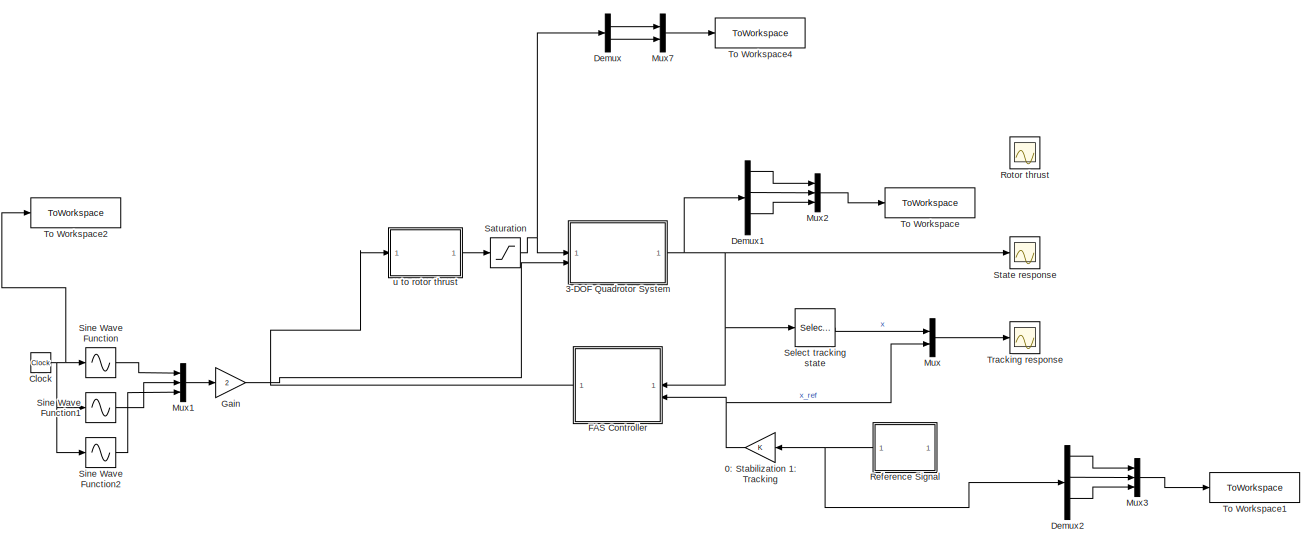
[diagram: root canvas - part 1/2, full width, top band]
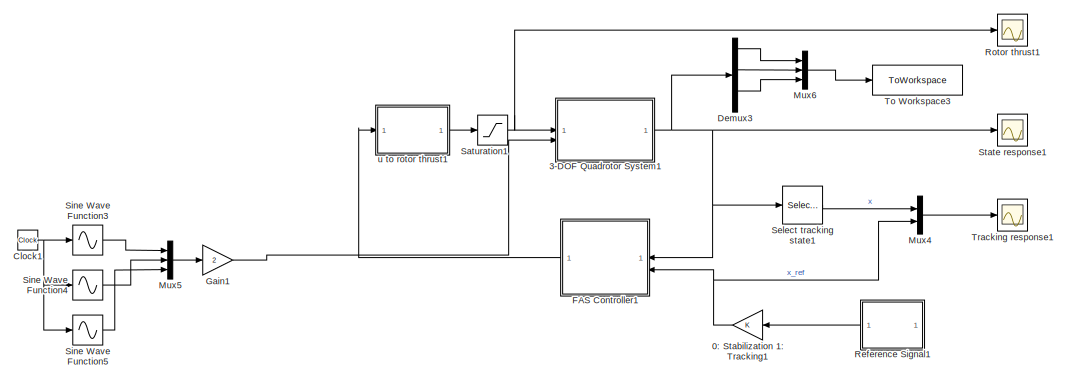
[diagram: root canvas - part 2/2, full width, bottom band]
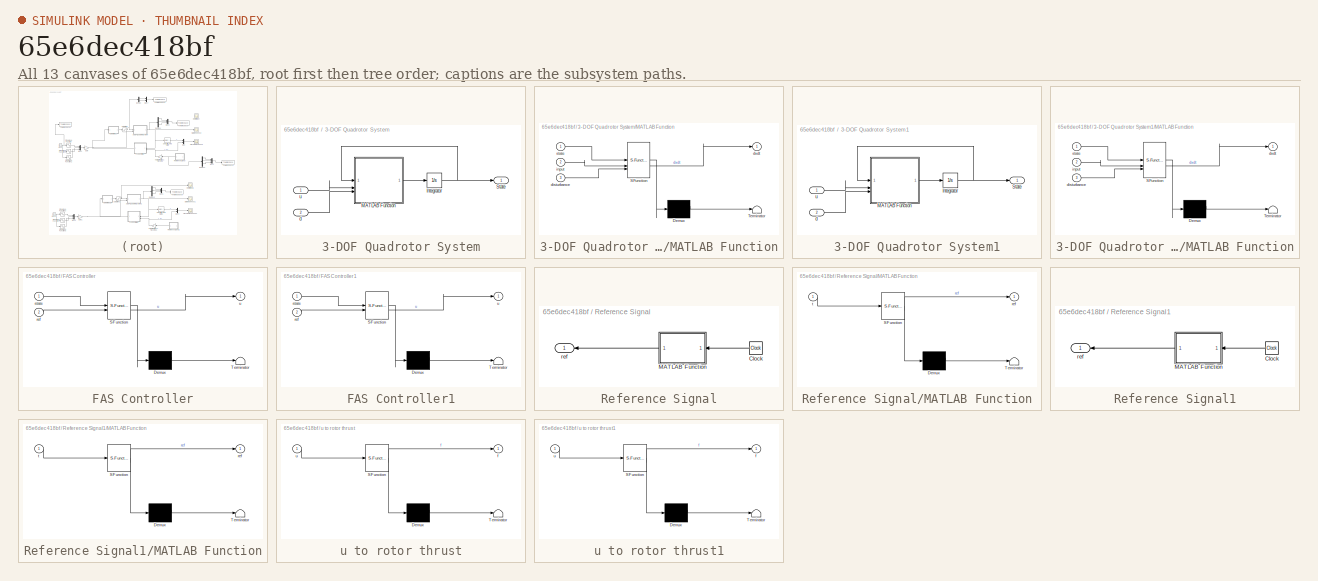
[diagram: thumbnail index - all 13 canvases of the model, root first then tree order]
MODEL slx_65e6dec418bf
KIND model
CONFIG AbsTol = auto
CONFIG EnableMultiTasking = off
CONFIG FixedStep = 0.0025
CONFIG MaxStep = auto
CONFIG MinStep = auto
CONFIG RelTol = 1e-3
CONFIG SampleTimeConstraint = Unconstrained
CONFIG SolverName = VariableStepAuto
CONFIG StartTime = 0.0
CONFIG StopTime = 20
BLOCK [Gain] 0: Stabilization 1: Tracking
BLOCK [Gain] 0: Stabilization 1: Tracking1
BLOCK [SubSystem] 3-DOF Quadrotor System
BLOCK [Integrator] 3-DOF Quadrotor System/Integrator
  InitialCondition = zeros(6,1)
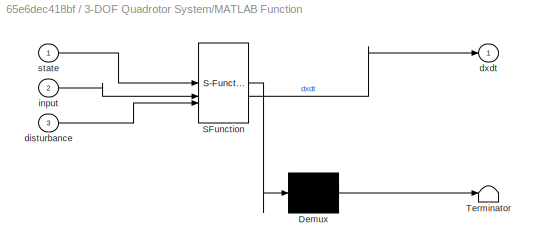
BLOCK [SubSystem] 3-DOF Quadrotor System/MATLAB Function
  ErrorFcn = Stateflow.Translate.translate
  LibrarySourceBlock = simulink/User-Defined\nFunctions/MATLAB Function
  PermitHierarchicalResolution = ExplicitOnly
  SFBlockType = MATLAB Function
  TreatAsAtomicUnit = on
BLOCK [Demux] 3-DOF Quadrotor System/MATLAB Function/ Demux 
  Outputs = 1
BLOCK [S-Function] 3-DOF Quadrotor System/MATLAB Function/ SFunction 
  EnableBusSupport = on
  FunctionName = sf_sfun
  PortCounts = [3 2]
  SFcnIsStateOwnerBlock = off
  SFunctionDeploymentMode = off
  Tag = Stateflow S-Function 2
BLOCK [Terminator] 3-DOF Quadrotor System/MATLAB Function/ Terminator 
BLOCK [Inport] 3-DOF Quadrotor System/MATLAB Function/disturbance
  Port = 3
BLOCK [Outport] 3-DOF Quadrotor System/MATLAB Function/dxdt
BLOCK [Inport] 3-DOF Quadrotor System/MATLAB Function/input
  Port = 2
BLOCK [Inport] 3-DOF Quadrotor System/MATLAB Function/state
BLOCK [Outport] 3-DOF Quadrotor System/State
BLOCK [Inport] 3-DOF Quadrotor System/d
  Port = 2
BLOCK [Inport] 3-DOF Quadrotor System/u
BLOCK [SubSystem] 3-DOF Quadrotor System1
BLOCK [Integrator] 3-DOF Quadrotor System1/Integrator
  InitialCondition = zeros(6,1)
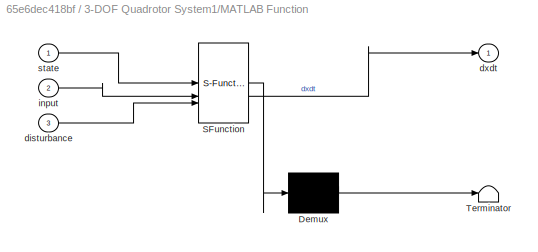
BLOCK [SubSystem] 3-DOF Quadrotor System1/MATLAB Function
  ErrorFcn = Stateflow.Translate.translate
  LibrarySourceBlock = simulink/User-Defined\nFunctions/MATLAB Function
  PermitHierarchicalResolution = ExplicitOnly
  SFBlockType = MATLAB Function
  TreatAsAtomicUnit = on
BLOCK [Demux] 3-DOF Quadrotor System1/MATLAB Function/ Demux 
  Outputs = 1
BLOCK [S-Function] 3-DOF Quadrotor System1/MATLAB Function/ SFunction 
  EnableBusSupport = on
  FunctionName = sf_sfun
  PortCounts = [3 2]
  SFcnIsStateOwnerBlock = off
  SFunctionDeploymentMode = off
  Tag = Stateflow S-Function 1
BLOCK [Terminator] 3-DOF Quadrotor System1/MATLAB Function/ Terminator 
BLOCK [Inport] 3-DOF Quadrotor System1/MATLAB Function/disturbance
  Port = 3
BLOCK [Outport] 3-DOF Quadrotor System1/MATLAB Function/dxdt
BLOCK [Inport] 3-DOF Quadrotor System1/MATLAB Function/input
  Port = 2
BLOCK [Inport] 3-DOF Quadrotor System1/MATLAB Function/state
BLOCK [Outport] 3-DOF Quadrotor System1/State
BLOCK [Inport] 3-DOF Quadrotor System1/d
  Port = 2
BLOCK [Inport] 3-DOF Quadrotor System1/u
BLOCK [Clock] Clock
BLOCK [Clock] Clock1
BLOCK [Demux] Demux
  Outputs = 2
BLOCK [Demux] Demux1
  Outputs = 6
BLOCK [Demux] Demux2
  Outputs = 6
BLOCK [Demux] Demux3
  Outputs = 6
BLOCK [SubSystem] FAS Controller
  ErrorFcn = Stateflow.Translate.translate
  LibrarySourceBlock = simulink/User-Defined\nFunctions/MATLAB Function
  PermitHierarchicalResolution = ExplicitOnly
  SFBlockType = MATLAB Function
  TreatAsAtomicUnit = on
BLOCK [Demux] FAS Controller/ Demux 
  Outputs = 1
BLOCK [S-Function] FAS Controller/ SFunction 
  EnableBusSupport = on
  FunctionName = sf_sfun
  PortCounts = [2 2]
  SFcnIsStateOwnerBlock = off
  SFunctionDeploymentMode = off
  Tag = Stateflow S-Function 4
BLOCK [Terminator] FAS Controller/ Terminator 
BLOCK [Inport] FAS Controller/ref
  Port = 2
BLOCK [Inport] FAS Controller/state
BLOCK [Outport] FAS Controller/u
BLOCK [SubSystem] FAS Controller1
  ErrorFcn = Stateflow.Translate.translate
  LibrarySourceBlock = simulink/User-Defined\nFunctions/MATLAB Function
  PermitHierarchicalResolution = ExplicitOnly
  SFBlockType = MATLAB Function
  TreatAsAtomicUnit = on
BLOCK [Demux] FAS Controller1/ Demux 
  Outputs = 1
BLOCK [S-Function] FAS Controller1/ SFunction 
  EnableBusSupport = on
  FunctionName = sf_sfun
  PortCounts = [2 2]
  SFcnIsStateOwnerBlock = off
  SFunctionDeploymentMode = off
  Tag = Stateflow S-Function 5
BLOCK [Terminator] FAS Controller1/ Terminator 
BLOCK [Inport] FAS Controller1/ref
  Port = 2
BLOCK [Inport] FAS Controller1/state
BLOCK [Outport] FAS Controller1/u
BLOCK [Gain] Gain
  Gain = 2
BLOCK [Gain] Gain1
  Gain = 2
BLOCK [Mux] Mux
  DisplayOption = bar
  Inputs = 2
BLOCK [Mux] Mux1
  DisplayOption = bar
  Inputs = 3
BLOCK [Mux] Mux2
  DisplayOption = bar
  Inputs = 3
BLOCK [Mux] Mux3
  DisplayOption = bar
  Inputs = 3
BLOCK [Mux] Mux4
  DisplayOption = bar
  Inputs = 2
BLOCK [Mux] Mux5
  DisplayOption = bar
  Inputs = 3
BLOCK [Mux] Mux6
  DisplayOption = bar
  Inputs = 3
BLOCK [Mux] Mux7
  DisplayOption = bar
  Inputs = 2
BLOCK [SubSystem] Reference Signal
BLOCK [Clock] Reference Signal/Clock
  NameLocation = top
BLOCK [SubSystem] Reference Signal/MATLAB Function
  ErrorFcn = Stateflow.Translate.translate
  LibrarySourceBlock = simulink/User-Defined\nFunctions/MATLAB Function
  NameLocation = top
  PermitHierarchicalResolution = ExplicitOnly
  SFBlockType = MATLAB Function
  TreatAsAtomicUnit = on
BLOCK [Demux] Reference Signal/MATLAB Function/ Demux 
  Outputs = 1
BLOCK [S-Function] Reference Signal/MATLAB Function/ SFunction 
  EnableBusSupport = on
  FunctionName = sf_sfun
  PortCounts = [1 2]
  SFcnIsStateOwnerBlock = off
  SFunctionDeploymentMode = off
  Tag = Stateflow S-Function 3
BLOCK [Terminator] Reference Signal/MATLAB Function/ Terminator 
BLOCK [Outport] Reference Signal/MATLAB Function/ref
BLOCK [Inport] Reference Signal/MATLAB Function/t
BLOCK [Outport] Reference Signal/ref
BLOCK [SubSystem] Reference Signal1
BLOCK [Clock] Reference Signal1/Clock
  NameLocation = top
BLOCK [SubSystem] Reference Signal1/MATLAB Function
  ErrorFcn = Stateflow.Translate.translate
  LibrarySourceBlock = simulink/User-Defined\nFunctions/MATLAB Function
  NameLocation = top
  PermitHierarchicalResolution = ExplicitOnly
  SFBlockType = MATLAB Function
  TreatAsAtomicUnit = on
BLOCK [Demux] Reference Signal1/MATLAB Function/ Demux 
  Outputs = 1
BLOCK [S-Function] Reference Signal1/MATLAB Function/ SFunction 
  EnableBusSupport = on
  FunctionName = sf_sfun
  PortCounts = [1 2]
  SFcnIsStateOwnerBlock = off
  SFunctionDeploymentMode = off
  Tag = Stateflow S-Function 7
BLOCK [Terminator] Reference Signal1/MATLAB Function/ Terminator 
BLOCK [Outport] Reference Signal1/MATLAB Function/ref
BLOCK [Inport] Reference Signal1/MATLAB Function/t
BLOCK [Outport] Reference Signal1/ref
BLOCK [Scope] Rotor thrust
  Floating = off
  NumInputPorts = 1
  ScopeSpecificationString = Simulink.scopes.TimeScopeBlockCfg('CurrentConfiguration', extmgr.ConfigurationSet(extmgr.Configuration('Core','General UI',true),extmgr.Configuration('Core','Source UI',true),extmgr.Configuration('Sources','WiredSimulink',true,'DataLoggingVariableName','ScopeData2'),extmgr.Configuration('Visuals','Time Domain',true,'SerializedDisplays',{struct('MinYLimReal','3.18422','MaxYLimReal','12.50544','YLab...<+1553ch>
BLOCK [Scope] Rotor thrust1
  Floating = off
  NumInputPorts = 1
  ScopeSpecificationString = Simulink.scopes.TimeScopeBlockCfg('CurrentConfiguration', extmgr.ConfigurationSet(extmgr.Configuration('Core','General UI',true),extmgr.Configuration('Core','Source UI',true),extmgr.Configuration('Sources','WiredSimulink',true,'DataLoggingVariableName','ScopeData1'),extmgr.Configuration('Visuals','Time Domain',true,'SerializedDisplays',{struct('MinYLimReal','3.1861','MaxYLimReal','12.50523','YLabe...<+1549ch>
BLOCK [Saturate] Saturation
  LowerLimit = -50
  UpperLimit = 50
BLOCK [Saturate] Saturation1
  LowerLimit = -50
  UpperLimit = 50
BLOCK [Selector] Select tracking state
  IndexOptions = Index vector (dialog)
  Indices = [1]
  InputPortWidth = 6
  OutputSizes = 1
BLOCK [Selector] Select tracking state1
  IndexOptions = Index vector (dialog)
  Indices = [1]
  InputPortWidth = 6
  OutputSizes = 1
BLOCK [Sin] Sine Wave Function
  Amplitude = 0.01
  SampleTime = 0
  TimeSource = Use external signal
BLOCK [Sin] Sine Wave Function1
  Amplitude = 0.01
  SampleTime = 0
  TimeSource = Use external signal
BLOCK [Sin] Sine Wave Function2
  Amplitude = 0.01
  SampleTime = 0
  TimeSource = Use external signal
BLOCK [Sin] Sine Wave Function3
  Amplitude = 0.01
  SampleTime = 0
  TimeSource = Use external signal
BLOCK [Sin] Sine Wave Function4
  Amplitude = 0.01
  SampleTime = 0
  TimeSource = Use external signal
BLOCK [Sin] Sine Wave Function5
  Amplitude = 0.01
  SampleTime = 0
  TimeSource = Use external signal
BLOCK [Scope] State response
  Floating = off
  NumInputPorts = 1
  ScopeSpecificationString = Simulink.scopes.TimeScopeBlockCfg('CurrentConfiguration', extmgr.ConfigurationSet(extmgr.Configuration('Core','General UI',true),extmgr.Configuration('Core','Source UI',true),extmgr.Configuration('Sources','WiredSimulink',true),extmgr.Configuration('Visuals','Time Domain',true,'SerializedDisplays',{struct('MinYLimReal','-0.94013','MaxYLimReal','1.21763','YLabelReal','','MinYLimMag','0.00000','MaxY...<+1872ch>
BLOCK [Scope] State response1
  Floating = off
  NumInputPorts = 1
  ScopeSpecificationString = Simulink.scopes.TimeScopeBlockCfg('CurrentConfiguration', extmgr.ConfigurationSet(extmgr.Configuration('Core','General UI',true),extmgr.Configuration('Core','Source UI',true),extmgr.Configuration('Sources','WiredSimulink',true,'DataLoggingVariableName','ScopeData2'),extmgr.Configuration('Visuals','Time Domain',true,'SerializedDisplays',{struct('MinYLimReal','-0.94013','MaxYLimReal','1.21763','YLab...<+1911ch>
BLOCK [ToWorkspace] To Workspace
  FixptAsFi = on
  MaxDataPoints = inf
  SampleTime = -1
  VariableName = state
BLOCK [ToWorkspace] To Workspace1
  FixptAsFi = on
  MaxDataPoints = inf
  SampleTime = -1
  VariableName = ref
BLOCK [ToWorkspace] To Workspace2
  FixptAsFi = on
  MaxDataPoints = inf
  SampleTime = -1
  VariableName = t
BLOCK [ToWorkspace] To Workspace3
  FixptAsFi = on
  MaxDataPoints = inf
  SampleTime = -1
  VariableName = state1
BLOCK [ToWorkspace] To Workspace4
  FixptAsFi = on
  MaxDataPoints = inf
  SampleTime = -1
  VariableName = u
BLOCK [Scope] Tracking response
  Floating = off
  NumInputPorts = 1
  ScopeSpecificationString = Simulink.scopes.TimeScopeBlockCfg('CurrentConfiguration', extmgr.ConfigurationSet(extmgr.Configuration('Core','General UI',true),extmgr.Configuration('Core','Source UI',true),extmgr.Configuration('Sources','WiredSimulink',true,'DataLoggingVariableName','ScopeData3'),extmgr.Configuration('Visuals','Time Domain',true,'SerializedDisplays',{struct('MinYLimReal','-1.25681','MaxYLimReal','1.31126','YLab...<+1659ch>
BLOCK [Scope] Tracking response1
  Floating = off
  NumInputPorts = 1
  ScopeSpecificationString = Simulink.scopes.TimeScopeBlockCfg('CurrentConfiguration', extmgr.ConfigurationSet(extmgr.Configuration('Core','General UI',true),extmgr.Configuration('Core','Source UI',true),extmgr.Configuration('Sources','WiredSimulink',true,'DataLoggingVariableName','ScopeData3'),extmgr.Configuration('Visuals','Time Domain',true,'SerializedDisplays',{struct('MinYLimReal','-1.25681','MaxYLimReal','1.31126','YLab...<+1659ch>
BLOCK [SubSystem] u to rotor thrust
  ErrorFcn = Stateflow.Translate.translate
  LibrarySourceBlock = simulink/User-Defined\nFunctions/MATLAB Function
  PermitHierarchicalResolution = ExplicitOnly
  SFBlockType = MATLAB Function
  TreatAsAtomicUnit = on
BLOCK [Demux] u to rotor thrust/ Demux 
  Outputs = 1
BLOCK [S-Function] u to rotor thrust/ SFunction 
  EnableBusSupport = on
  FunctionName = sf_sfun
  PortCounts = [1 2]
  SFcnIsStateOwnerBlock = off
  SFunctionDeploymentMode = off
  Tag = Stateflow S-Function 6
BLOCK [Terminator] u to rotor thrust/ Terminator 
BLOCK [Outport] u to rotor thrust/f
BLOCK [Inport] u to rotor thrust/u
BLOCK [SubSystem] u to rotor thrust1
  ErrorFcn = Stateflow.Translate.translate
  LibrarySourceBlock = simulink/User-Defined\nFunctions/MATLAB Function
  PermitHierarchicalResolution = ExplicitOnly
  SFBlockType = MATLAB Function
  TreatAsAtomicUnit = on
BLOCK [Demux] u to rotor thrust1/ Demux 
  Outputs = 1
BLOCK [S-Function] u to rotor thrust1/ SFunction 
  EnableBusSupport = on
  FunctionName = sf_sfun
  PortCounts = [1 2]
  SFcnIsStateOwnerBlock = off
  SFunctionDeploymentMode = off
  Tag = Stateflow S-Function 8
BLOCK [Terminator] u to rotor thrust1/ Terminator 
BLOCK [Outport] u to rotor thrust1/f
BLOCK [Inport] u to rotor thrust1/u
NET 0: Stabilization 1: Tracking1:1 -> FAS Controller1:2, Mux4:2
NET 0: Stabilization 1: Tracking:1 -> FAS Controller:2, Mux:2
NET 3-DOF Quadrotor System/Integrator:1 -> 3-DOF Quadrotor System/MATLAB Function:1, 3-DOF Quadrotor System/State:1
LINE 3-DOF Quadrotor System/MATLAB Function:1 -> 3-DOF Quadrotor System/Integrator:1
LINE 3-DOF Quadrotor System/d:1 -> 3-DOF Quadrotor System/MATLAB Function:3
LINE 3-DOF Quadrotor System/u:1 -> 3-DOF Quadrotor System/MATLAB Function:2
NET 3-DOF Quadrotor System1/Integrator:1 -> 3-DOF Quadrotor System1/MATLAB Function:1, 3-DOF Quadrotor System1/State:1
LINE 3-DOF Quadrotor System1/MATLAB Function:1 -> 3-DOF Quadrotor System1/Integrator:1
LINE 3-DOF Quadrotor System1/d:1 -> 3-DOF Quadrotor System1/MATLAB Function:3
LINE 3-DOF Quadrotor System1/u:1 -> 3-DOF Quadrotor System1/MATLAB Function:2
NET 3-DOF Quadrotor System1:1 -> Demux3:1, FAS Controller1:1, Select tracking state1:1, State response1:1
NET 3-DOF Quadrotor System:1 -> Demux1:1, FAS Controller:1, Select tracking state:1, State response:1
NET Clock1:1 -> Sine Wave Function3:1, Sine Wave Function4:1, Sine Wave Function5:1
NET Clock:1 -> Sine Wave Function1:1, Sine Wave Function2:1, Sine Wave Function:1, To Workspace2:1
LINE Demux1:1 -> Mux2:1
LINE Demux1:3 -> Mux2:2
LINE Demux1:5 -> Mux2:3
LINE Demux2:1 -> Mux3:1
LINE Demux2:3 -> Mux3:2
LINE Demux2:5 -> Mux3:3
LINE Demux3:1 -> Mux6:1
LINE Demux3:3 -> Mux6:2
LINE Demux3:5 -> Mux6:3
LINE Demux:1 -> Mux7:1
LINE Demux:2 -> Mux7:2
LINE FAS Controller1:1 -> u to rotor thrust1:1
LINE FAS Controller:1 -> u to rotor thrust:1
LINE Gain1:1 -> 3-DOF Quadrotor System1:2
LINE Gain:1 -> 3-DOF Quadrotor System:2
LINE Mux1:1 -> Gain:1
LINE Mux2:1 -> To Workspace:1
LINE Mux3:1 -> To Workspace1:1
LINE Mux4:1 -> Tracking response1:1
LINE Mux5:1 -> Gain1:1
LINE Mux6:1 -> To Workspace3:1
LINE Mux7:1 -> To Workspace4:1
LINE Mux:1 -> Tracking response:1
LINE Reference Signal/Clock:1 -> Reference Signal/MATLAB Function:1
LINE Reference Signal/MATLAB Function:1 -> Reference Signal/ref:1
LINE Reference Signal1/Clock:1 -> Reference Signal1/MATLAB Function:1
LINE Reference Signal1/MATLAB Function:1 -> Reference Signal1/ref:1
LINE Reference Signal1:1 -> 0: Stabilization 1: Tracking1:1
NET Reference Signal:1 -> 0: Stabilization 1: Tracking:1, Demux2:1
NET Saturation1:1 -> 3-DOF Quadrotor System1:1, Rotor thrust1:1
NET Saturation:1 -> 3-DOF Quadrotor System:1, Demux:1
LINE Select tracking state1:1 -> Mux4:1
LINE Select tracking state:1 -> Mux:1
LINE Sine Wave Function1:1 -> Mux1:2
LINE Sine Wave Function2:1 -> Mux1:3
LINE Sine Wave Function3:1 -> Mux5:1
LINE Sine Wave Function4:1 -> Mux5:2
LINE Sine Wave Function5:1 -> Mux5:3
LINE Sine Wave Function:1 -> Mux1:1
LINE u to rotor thrust1:1 -> Saturation1:1
LINE u to rotor thrust:1 -> Saturation:1
note: NET lines group one-source signal fan-out (src -> all destinations, sorted); 1:1 wires keep LINE
CHART 3-DOF Quadrotor System1/MATLAB Function states=1 transitions=1
  STATE_LABEL 'eML_blk_kernel()'
  STATE_LABEL 'SCRIPT:\nfunction dxdt = quadrotor(state,input,disturbance)\nd1=disturbance(1);\nd2=disturbance(2);\nd3=disturbance(2);\nx = state(1);\ndx = state(2);\nz = state(3);\ndz = state(4);\ntheta = state(5);\ndtheta = state(6);\nf1 = input(1);\nf2 = input(2);\nm = 1;\nJ = 0.01;\ng = 9.81;\ndxdt = [dx;\n        (f1 + f2)/m * sin(theta)+d1;\n        dz;\n        (f1 + f2)/m * cos(theta) - g+d2;\n        dtheta;\n        (f2 - ...<+14ch>'
CHART 3-DOF Quadrotor System/MATLAB Function states=1 transitions=1
  STATE_LABEL 'eML_blk_kernel()'
  STATE_LABEL 'SCRIPT:\nfunction dxdt = quadrotor(state,input,disturbance)\nd1=disturbance(1);\nd2=disturbance(2);\nd3=disturbance(2);\nx = state(1);\ndx = state(2);\nz = state(3);\ndz = state(4);\ntheta = state(5);\ndtheta = state(6);\nf1 = input(1);\nf2 = input(2);\nm = 1;\nJ = 0.01;\ng = 9.81;\ndxdt = [dx;\n        (f1 + f2)/m * sin(theta)+d1;\n        dz;\n        (f1 + f2)/m * cos(theta) - g+d2;\n        dtheta;\n        (f2 - ...<+14ch>'
CHART Reference Signal/MATLAB Function states=1 transitions=1
  STATE_LABEL 'eML_blk_kernel()'
  STATE_LABEL 'SCRIPT:\nfunction ref = fcn(t)\nref = zeros(6,1);\nref(1) = sin(t);%x\nref(2) = cos(t);%dx\nref(3) = cos(t);%z\nref(4) = -sin(t);%dz\nref(5) = 0;\nref(6) = 0;'
CHART FAS Controller states=1 transitions=1
  STATE_LABEL 'eML_blk_kernel()'
  STATE_LABEL 'SCRIPT:\nfunction u = controller(state,ref)\nx = state(1) - ref(1);\ndx = state(2) - ref(2);\nz = state(3) - ref(3);\ndz = state(4) - ref(4);\ntheta = state(5);\ndtheta = state(6) ;\n\nm = 1;\nJ = 0.01;\ng = 9.81;\n\nz1 = x;\nz21 = z;\nz22 = theta;\ndz22 = dtheta;\n% Controller gains\nA1 = [7.5 19.25 17.75 7]; % more powerful gain\n\nA2 = [1.5 2.5]; % more powerful gain\nP1L = 1.0e+05 *[0.5088    1.0093    0.6488    0...<+845ch>'
CHART FAS Controller1 states=1 transitions=1
  STATE_LABEL 'eML_blk_kernel()'
  STATE_LABEL 'SCRIPT:\nfunction u = controller(state,ref)\nx = state(1) - ref(1);\ndx = state(2) - ref(2);\nz = state(3) - ref(3);\ndz = state(4) - ref(4);\ntheta = state(5);\ndtheta = state(6) ;\n\nm = 1;\nJ = 0.01;\ng = 9.81;\n\nz1 = x;\nz21 = z;\nz22 = theta;\ndz22 = dtheta;\n% Controller gains\nA1 = [7.5 19.25 17.75 7]; % more powerful gain\n\nA2 = [1.5 2.5]; % more powerful gain\nP1L = 1.0e+05 *[0.5088    1.0093    0.6488    0...<+847ch>'
CHART u to rotor thrust states=1 transitions=1
  STATE_LABEL 'eML_blk_kernel()'
  STATE_LABEL 'SCRIPT:\nfunction f = fcn(u)\nm = 1;\nJ = 0.01;\ng = 9.81;\nf1 = (m*u(1) - J*u(2)) / 2;\nf2 = m*u(1) - f1;\nf = [f1; f2];\n'
CHART Reference Signal1/MATLAB Function states=1 transitions=1
  STATE_LABEL 'eML_blk_kernel()'
  STATE_LABEL 'SCRIPT:\nfunction ref = fcn(t)\nref = zeros(6,1);\nref(1) = sin(t);%x\nref(2) = cos(t);%dx\nref(3) = cos(t);%z\nref(4) = -sin(t);%dz\nref(5) = 0;\nref(6) = 0;'
CHART u to rotor thrust1 states=1 transitions=1
  STATE_LABEL 'eML_blk_kernel()'
  STATE_LABEL 'SCRIPT:\nfunction f = fcn(u)\nm = 1;\nJ = 0.01;\ng = 9.81;\nf1 = (m*u(1) - J*u(2)) / 2;\nf2 = m*u(1) - f1;\nf = [f1; f2];\n'
CHART  states=0 transitions=0
CHART  states=0 transitions=0
CHART  states=0 transitions=0
CHART  states=0 transitions=0
CHART  states=0 transitions=0
CHART  states=0 transitions=0
CHART  states=0 transitions=0
CHART  states=0 transitions=0
